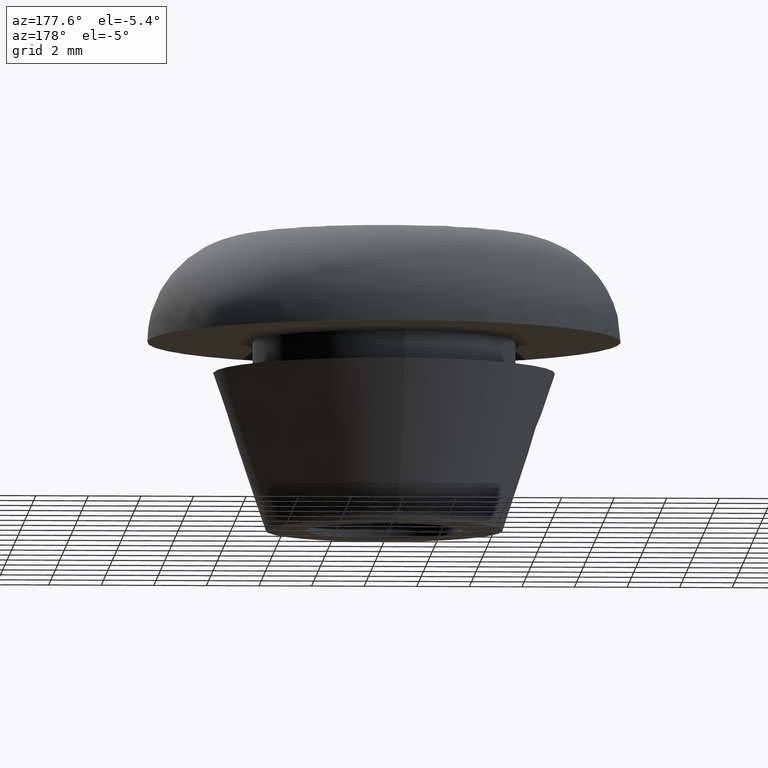
[diagram: clean part render]
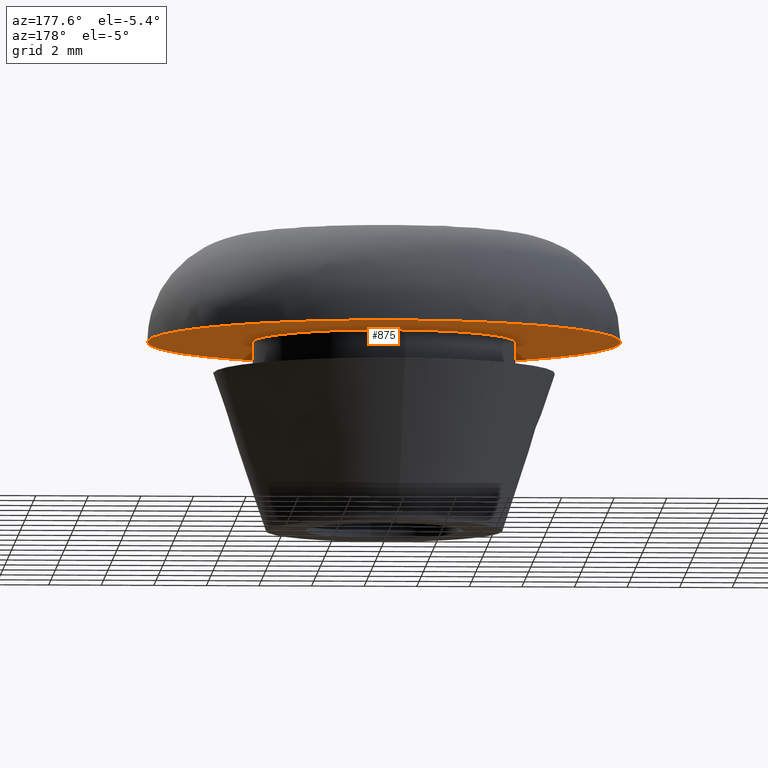
[diagram: same view with one face highlighted and labeled with its STEP entity id]
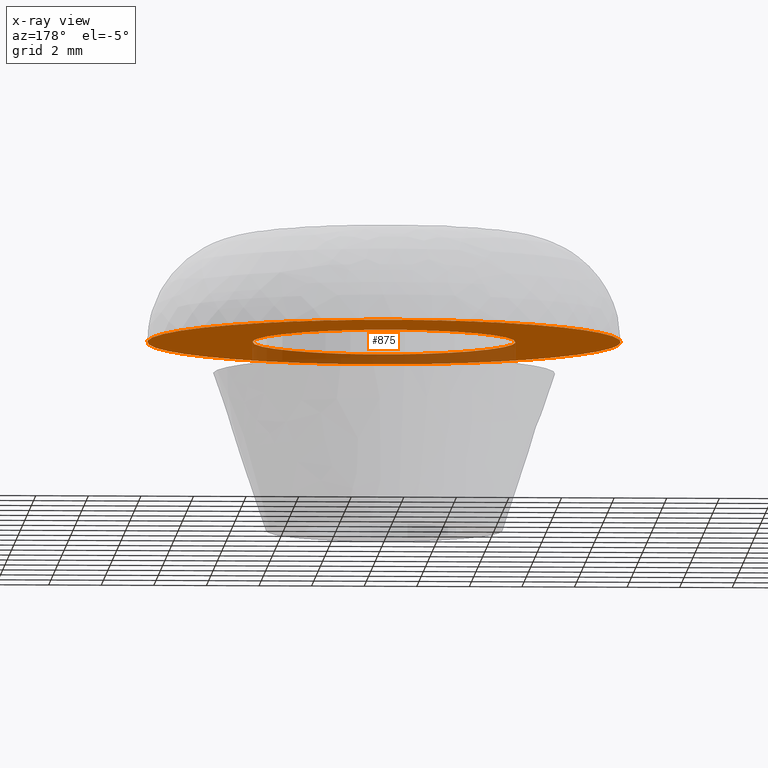
[diagram: x-ray of the same camera — body ghosted, the highlighted face saturated]
A machine part, auxiliary view. The second image highlights one B-rep face of the part: STEP entity #875.
The next image is the same camera in x-ray: the body ghosted, the highlighted face saturated — about 26% of this face is hidden behind the body in this view.
In plain terms, the highlighted face is a freeform B-spline surface patch.
Its self-contained STEP definition (entity closure, byte-faithful):
#256=CARTESIAN_POINT('',(-0.590169455614432,4.965047835988770,7.200000000000022));
#257=VERTEX_POINT('',#256);
#258=CARTESIAN_POINT('',(5.0,0.0,7.200000000000000));
#259=VERTEX_POINT('',#258);
#260=CARTESIAN_POINT('',(-0.590169455614432,4.965047835988770,7.200000000000023));
#261=CARTESIAN_POINT('',(-0.296119730345424,4.999999999999999,7.200000000000000));
#262=CARTESIAN_POINT('',(0.0,5.0,7.200000000000000));
#263=CARTESIAN_POINT('',(5.000000000000001,5.000000000000001,7.200000000000000));
#264=CARTESIAN_POINT('',(5.0,0.0,7.200000000000000));
#272=(BOUNDED_CURVE()B_SPLINE_CURVE(2,(#260,#261,#262,#263,#264),.UNSPECIFIED.,.F.,.U.)B_SPLINE_CURVE_WITH_KNOTS((3,2,3),(0.229562531982699,0.250000000000000,0.500000000000000),.UNSPECIFIED.)CURVE()GEOMETRIC_REPRESENTATION_ITEM()RATIONAL_B_SPLINE_CURVE((0.956026868785737,0.976056016832063,1.0,0.707106781186548,1.0))REPRESENTATION_ITEM(''));
#273=EDGE_CURVE('',#257,#259,#272,.T.);
#275=CARTESIAN_POINT('',(0.305237013104272,-4.990674339786032,7.199999999999904));
#276=VERTEX_POINT('',#275);
#277=CARTESIAN_POINT('',(5.0,0.0,7.200000000000000));
#278=CARTESIAN_POINT('',(4.999999999999999,-4.703535702044791,7.199999999999999));
#279=CARTESIAN_POINT('',(0.305237013104272,-4.990674339786032,7.199999999999904));
#287=(BOUNDED_CURVE()B_SPLINE_CURVE(2,(#277,#278,#279),.UNSPECIFIED.,.F.,.U.)B_SPLINE_CURVE_WITH_KNOTS((3,3),(0.500000000000000,0.739333158779441),.UNSPECIFIED.)CURVE()GEOMETRIC_REPRESENTATION_ITEM()RATIONAL_B_SPLINE_CURVE((1.0,0.719603763025194,0.976072462890779))REPRESENTATION_ITEM(''));
#288=EDGE_CURVE('',#259,#276,#287,.T.);
#355=CARTESIAN_POINT('',(-5.0,0.0,7.200000000000000));
#356=VERTEX_POINT('',#355);
#357=CARTESIAN_POINT('',(-5.0,0.0,7.200000000000000));
#358=CARTESIAN_POINT('',(-5.0,4.440874176902134,7.200000000000000));
#359=CARTESIAN_POINT('',(-0.590169455614432,4.965047835988770,7.200000000000023));
#367=(BOUNDED_CURVE()B_SPLINE_CURVE(2,(#357,#358,#359),.UNSPECIFIED.,.F.,.U.)B_SPLINE_CURVE_WITH_KNOTS((3,3),(0.0,0.229562531982699),.UNSPECIFIED.)CURVE()GEOMETRIC_REPRESENTATION_ITEM()RATIONAL_B_SPLINE_CURVE((1.0,0.731050764354485,0.956026868785737))REPRESENTATION_ITEM(''));
#368=EDGE_CURVE('',#356,#257,#367,.T.);
#402=CARTESIAN_POINT('',(0.305237013104272,-4.990674339786032,7.199999999999904));
#403=CARTESIAN_POINT('',(0.152760966238695,-5.0,7.200000000000001));
#404=CARTESIAN_POINT('',(0.0,-5.0,7.200000000000000));
#405=CARTESIAN_POINT('',(-5.000000000000001,-5.000000000000001,7.200000000000000));
#406=CARTESIAN_POINT('',(-5.0,0.0,7.200000000000000));
#414=(BOUNDED_CURVE()B_SPLINE_CURVE(2,(#402,#403,#404,#405,#406),.UNSPECIFIED.,.F.,.U.)B_SPLINE_CURVE_WITH_KNOTS((3,2,3),(0.739333158779441,0.750000000000000,1.0),.UNSPECIFIED.)CURVE()GEOMETRIC_REPRESENTATION_ITEM()RATIONAL_B_SPLINE_CURVE((0.976072462890779,0.987503018161353,1.0,0.707106781186548,1.0))REPRESENTATION_ITEM(''));
#415=EDGE_CURVE('',#276,#356,#414,.T.);
#673=CARTESIAN_POINT('',(8.999289397834282,0.113094358954944,7.200000000009858));
#674=VERTEX_POINT('',#673);
#688=CARTESIAN_POINT('',(-9.0,0.0,7.200000000000000));
#689=VERTEX_POINT('',#688);
#690=CARTESIAN_POINT('',(-9.0,0.0,7.200000000000000));
#691=CARTESIAN_POINT('',(-9.0,9.0,7.200000000000000));
#692=CARTESIAN_POINT('',(0.0,9.0,7.200000000000000));
#693=CARTESIAN_POINT('',(8.887607369156402,9.0,7.200000000000000));
#694=CARTESIAN_POINT('',(8.999289397834282,0.113094358954944,7.200000000009858));
#702=(BOUNDED_CURVE()B_SPLINE_CURVE(2,(#690,#691,#692,#693,#694),.UNSPECIFIED.,.F.,.U.)B_SPLINE_CURVE_WITH_KNOTS((3,2,3),(0.0,0.250000000000000,0.497784295921542),.UNSPECIFIED.)CURVE()GEOMETRIC_REPRESENTATION_ITEM()RATIONAL_B_SPLINE_CURVE((1.0,0.707106781186547,1.0,0.709702639984458,0.994854295643583))REPRESENTATION_ITEM(''));
#703=EDGE_CURVE('',#689,#674,#702,.T.);
#705=CARTESIAN_POINT('',(0.627599264179876,-8.978091064563827,7.200000000009817));
#706=VERTEX_POINT('',#705);
#707=CARTESIAN_POINT('',(0.627599264179876,-8.978091064563827,7.200000000009817));
#708=CARTESIAN_POINT('',(0.314182042873309,-9.0,7.200000000000001));
#709=CARTESIAN_POINT('',(0.0,-9.0,7.200000000000000));
#710=CARTESIAN_POINT('',(-9.0,-9.0,7.200000000000000));
#711=CARTESIAN_POINT('',(-9.0,0.0,7.200000000000000));
#719=(BOUNDED_CURVE()B_SPLINE_CURVE(2,(#707,#708,#709,#710,#711),.UNSPECIFIED.,.F.,.U.)B_SPLINE_CURVE_WITH_KNOTS((3,2,3),(0.737833686535100,0.750000000000000,1.0),.UNSPECIFIED.)CURVE()GEOMETRIC_REPRESENTATION_ITEM()RATIONAL_B_SPLINE_CURVE((0.972879876386994,0.985746277152688,1.0,0.707106781186547,1.0))REPRESENTATION_ITEM(''));
#720=EDGE_CURVE('',#706,#689,#719,.T.);
#771=CARTESIAN_POINT('',(9.0,0.0,7.200000000000000));
#772=VERTEX_POINT('',#771);
#773=CARTESIAN_POINT('',(9.0,0.0,7.200000000000000));
#774=CARTESIAN_POINT('',(9.000000000000002,-8.392831625397912,7.200000000000001));
#775=CARTESIAN_POINT('',(0.627599264179876,-8.978091064563827,7.200000000009817));
#783=(BOUNDED_CURVE()B_SPLINE_CURVE(2,(#773,#774,#775),.UNSPECIFIED.,.F.,.U.)B_SPLINE_CURVE_WITH_KNOTS((3,3),(0.500000000000000,0.737833686535101),.UNSPECIFIED.)CURVE()GEOMETRIC_REPRESENTATION_ITEM()RATIONAL_B_SPLINE_CURVE((1.0,0.721360504033859,0.972879876386995))REPRESENTATION_ITEM(''));
#784=EDGE_CURVE('',#772,#706,#783,.T.);
#786=CARTESIAN_POINT('',(8.999289397834282,0.113094358954944,7.200000000009858));
#787=CARTESIAN_POINT('',(9.0,0.056549411931782,7.200000000000000));
#788=CARTESIAN_POINT('',(9.0,0.0,7.200000000000000));
#796=(BOUNDED_CURVE()B_SPLINE_CURVE(2,(#786,#787,#788),.UNSPECIFIED.,.F.,.U.)B_SPLINE_CURVE_WITH_KNOTS((3,3),(0.497784295921542,0.500000000000000),.UNSPECIFIED.)CURVE()GEOMETRIC_REPRESENTATION_ITEM()RATIONAL_B_SPLINE_CURVE((0.994854295643583,0.997404141202089,1.0))REPRESENTATION_ITEM(''));
#797=EDGE_CURVE('',#674,#772,#796,.T.);
#858=CARTESIAN_POINT('',(9.899099965112507,-9.898013720965656,7.200000000000000));
#859=CARTESIAN_POINT('',(-9.899100447910129,-9.898013720965656,7.200000000000000));
#860=CARTESIAN_POINT('',(9.899099965112507,9.898862726337711,7.199999999999999));
#861=CARTESIAN_POINT('',(-9.899100447910129,9.898862726337711,7.199999999999999));
#862=B_SPLINE_SURFACE_WITH_KNOTS('',1,1,((#858,#860),(#859,#861)),.UNSPECIFIED.,.F.,.F.,.U.,(2,2),(2,2),(0.0,19.798200413022631),(0.0,19.796876447303369),.UNSPECIFIED.);
#863=ORIENTED_EDGE('',*,*,#703,.T.);
#864=ORIENTED_EDGE('',*,*,#797,.T.);
#865=ORIENTED_EDGE('',*,*,#784,.T.);
#866=ORIENTED_EDGE('',*,*,#720,.T.);
#867=EDGE_LOOP('',(#863,#864,#865,#866));
#868=FACE_OUTER_BOUND('',#867,.T.);
#869=ORIENTED_EDGE('',*,*,#288,.F.);
#870=ORIENTED_EDGE('',*,*,#273,.F.);
#871=ORIENTED_EDGE('',*,*,#368,.F.);
#872=ORIENTED_EDGE('',*,*,#415,.F.);
#873=EDGE_LOOP('',(#869,#870,#871,#872));
#874=FACE_BOUND('',#873,.T.);
#875=ADVANCED_FACE('',(#868,#874),#862,.T.);